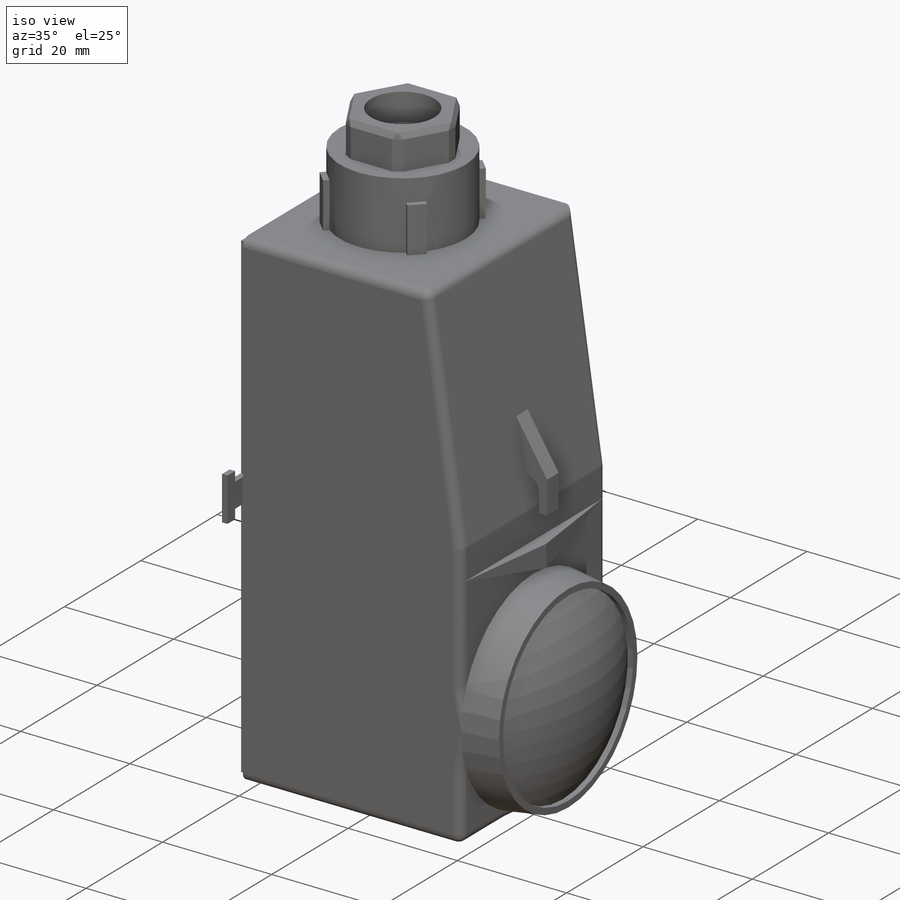
[diagram: iso view]
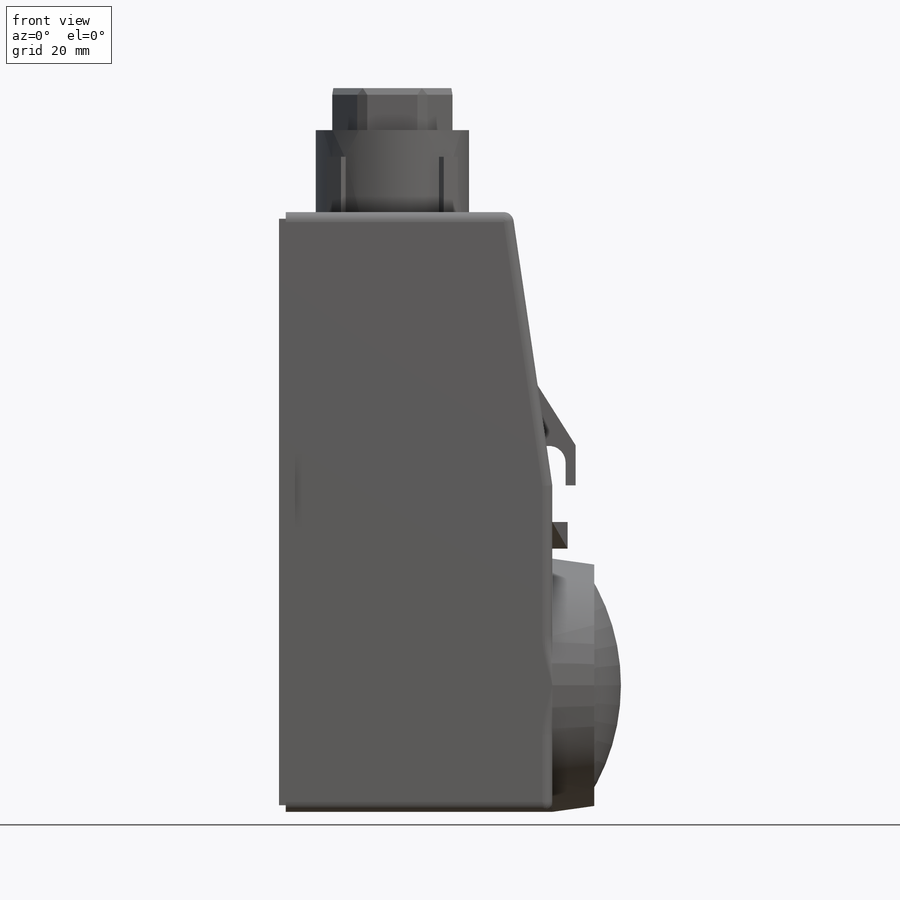
[diagram: front view]
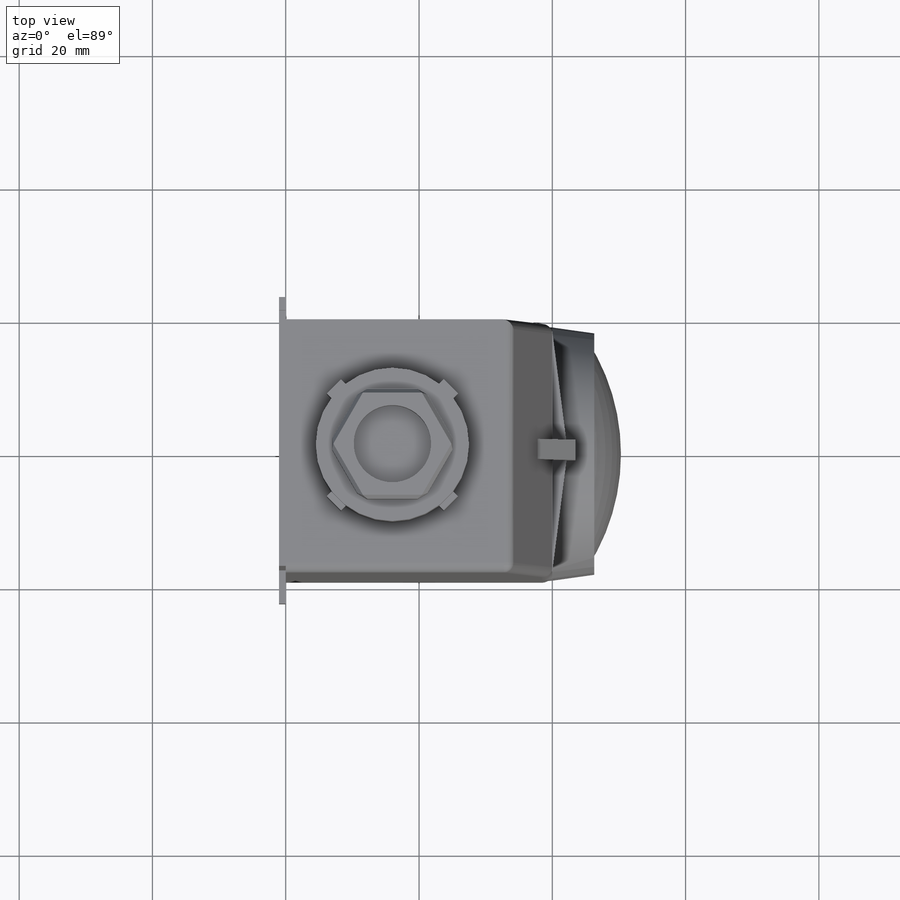
[diagram: top view]
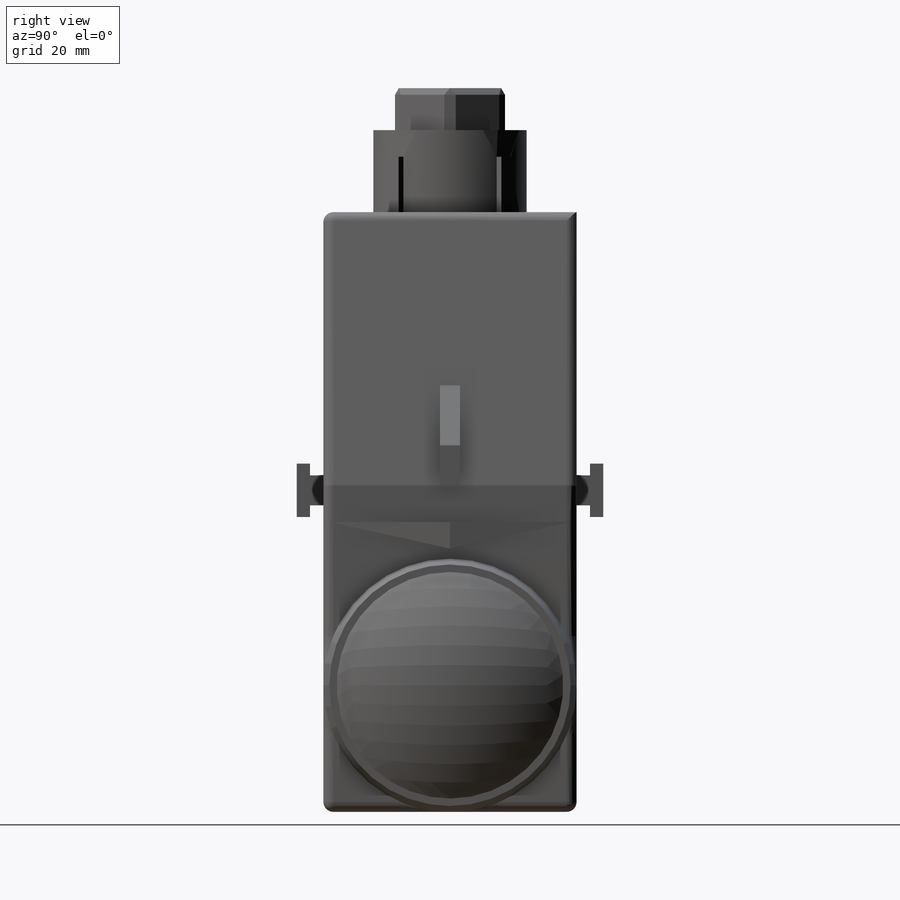
[diagram: right view]
SOLIDWORKS PART (.sldprt)
format: sldprt  version: not decoded by parser v0  size: 479,232 bytes
history: native  units: mm
features: sketch x12, extrude x8, cut_extrude x4, plane x3, material x1, pattern_circular x1, dome x1, mirror x1, chamfer x1, fillet x1 (+8 scaffold rows collapsed)
feature tree (41):
  scaffold x8  (default folders/planes/origin — collapsed)
  material  "Materiál <není určen>"
  plane  "Přední rovina"
  plane  "Horní rovina"
  plane  "Pravá rovina"
  sketch  "Skica1"  dims[D1=40.0mm D2=90.0mm D3=34.0mm D4=49.0mm]
  extrude  "Přidat vysunutím1"  Depth=38mm
  sketch  "Skica2"  dims[D1=23.0mm D2=16.0mm]
  extrude  "Přidat vysunutím2"  Depth=12.3mm
  sketch  "Skica3"  dims[c1.D1=3.0mm c1.D2=1.0mm c1.D3=11.5mm c2.D3=45.0deg]
  extrude  "Přidat vysunutím3"  Depth=4mm
  pattern_circular  "Kruhové pole1"  Count=4 Angle=360deg
  sketch  "Skica4"  dims[D1=16.5mm]
  extrude  "Přidat vysunutím4"  Depth=6.3mm
  sketch  "Skica5"  dims[D1=38.0mm D2=19.0mm]
  extrude  "Přidat vysunutím5"  Depth=6.3mm
  sketch  "Skica6"  dims[D1=34.0mm]
  cut_extrude  "Odebrat vysunutím1"  Depth=1mm
  dome  "Kopule1"
  sketch  "Skica7"  dims[D1=43.5mm D2=4.0mm D3=18.0mm]
  extrude  "Přidat vysunutím6"  Depth=2.3mm
  mirror  "Zrcadlit3"
  sketch  "Skica8"
  cut_extrude  "Odebrat vysunutím2"  [1 undecoded]
  chamfer  "Zkosení1"  Distance=1mm Angle=30deg
  sketch  "Skica9"  dims[c1.D5=2.5mm c1.D1=~41.436699mm c2.D1=156.0deg c2.D2=6.0mm c2.D3=3.5mm c2.D4=1.5mm c2.D6=15.0mm]
  extrude  "Přidat vysunutím7"  Depth=3mm
  sketch  "Skica10"  dims[D2=45.0mm D3=4.5mm D4=2.0mm D5=5.0mm D6=8.0mm D1=1.0mm]
  extrude  "Přidat vysunutím8"  Depth=1mm
  sketch  "Skica11"  dims[c1.D1=~5.375564mm c1.D2=~5.375564mm c1.D3=3.0mm c2.D1=8.7mm c2.D2=58.0mm]
  cut_extrude  "Odebrat vysunutím3"  Depth=2mm
  sketch  "Skica12"  dims[D1=11.6mm]
  cut_extrude  "Odebrat vysunutím4"  Depth=5mm
  fillet  "Zaoblit1"  Radius=1.5mm
decode coverage: 25 of 29 modeling features carry decoded parameters
note: ~ marks probable driven/reference dimensions
note: 1 parameter value undecoded
note: suppression state not decoded; provenance and decode notes live in map.json
